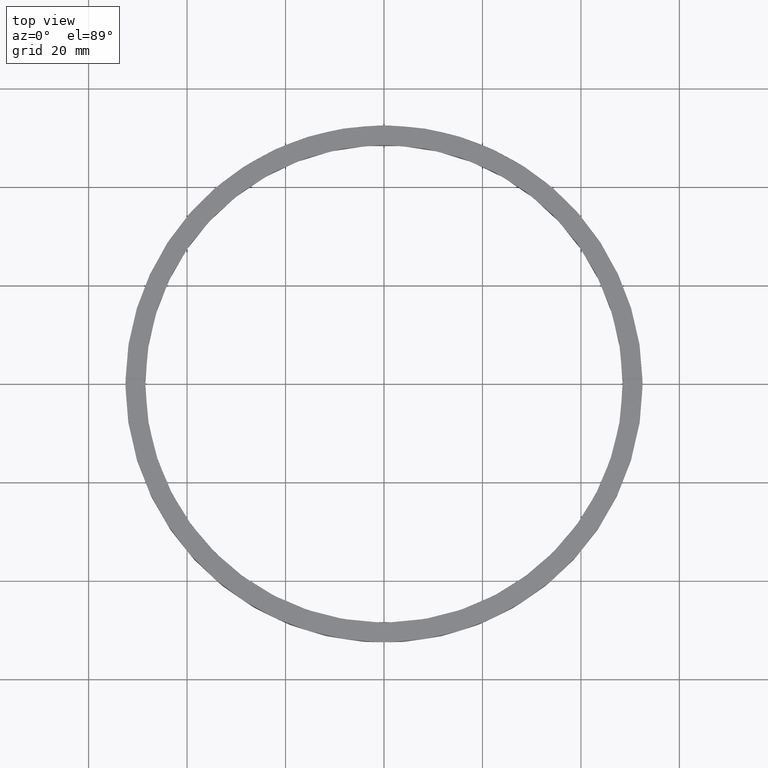
[diagram: clean part render]
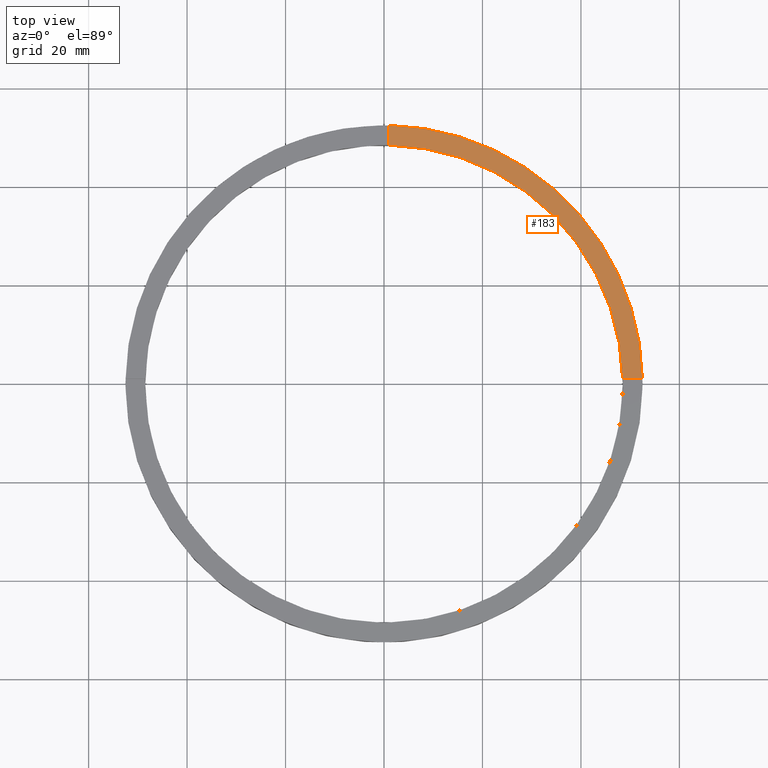
[diagram: same view with one face highlighted and labeled with its STEP entity id]
A machine part, top view. The second image highlights one B-rep face of the part: STEP entity #183.
In plain terms, the highlighted planar face has unit normal (0, 0, 1).
Its self-contained STEP definition (entity closure, byte-faithful):
#34 = DIRECTION ( 'NONE',  ( 1.000000000000000000, 0.000000000000000000, 0.000000000000000000 ) ) ;
#36 = EDGE_CURVE ( 'NONE', #99, #107, #675, .T. ) ;
#37 = CARTESIAN_POINT ( 'NONE',  ( 48.48968962573384545, 0.9999999999998450129, 5.000000000000000000 ) ) ;
#51 = PLANE ( 'NONE',  #740 ) ;
#67 = AXIS2_PLACEMENT_3D ( 'NONE', #328, #229, #34 ) ;
#68 = DIRECTION ( 'NONE',  ( 1.000000000000000000, 0.000000000000000000, -0.000000000000000000 ) ) ;
#69 = CARTESIAN_POINT ( 'NONE',  ( 0.000000000000000000, 0.000000000000000000, 5.000000000000000000 ) ) ;
#97 = ORIENTED_EDGE ( 'NONE', *, *, #437, .F. ) ;
#99 = VERTEX_POINT ( 'NONE', #573 ) ;
#105 = ORIENTED_EDGE ( 'NONE', *, *, #732, .F. ) ;
#107 = VERTEX_POINT ( 'NONE', #687 ) ;
#137 = AXIS2_PLACEMENT_3D ( 'NONE', #69, #768, #185 ) ;
#150 = VECTOR ( 'NONE', #212, 1000.000000000000000 ) ;
#165 = CIRCLE ( 'NONE', #67, 48.50000000000000000 ) ;
#169 = LINE ( 'NONE', #564, #150 ) ;
#183 = ADVANCED_FACE ( 'NONE', ( #743 ), #51, .T. ) ;
#185 = DIRECTION ( 'NONE',  ( 1.000000000000000000, 0.000000000000000000, 0.000000000000000000 ) ) ;
#186 = CARTESIAN_POINT ( 'NONE',  ( 0.9999999999999729106, 48.48968962573384545, 5.000000000000000000 ) ) ;
#187 = CARTESIAN_POINT ( 'NONE',  ( 0.9999999999999729106, 42.49999999999999289, 5.000000000000000000 ) ) ;
#212 = DIRECTION ( 'NONE',  ( -1.000000000000000000, -6.505213034913025371E-17, -0.000000000000000000 ) ) ;
#229 = DIRECTION ( 'NONE',  ( 0.000000000000000000, 0.000000000000000000, 1.000000000000000000 ) ) ;
#247 = CARTESIAN_POINT ( 'NONE',  ( 0.000000000000000000, 0.000000000000000000, 5.000000000000000000 ) ) ;
#270 = DIRECTION ( 'NONE',  ( 0.000000000000000000, 0.000000000000000000, 1.000000000000000000 ) ) ;
#311 = EDGE_CURVE ( 'NONE', #334, #640, #165, .T. ) ;
#328 = CARTESIAN_POINT ( 'NONE',  ( 0.000000000000000000, 0.000000000000000000, 5.000000000000000000 ) ) ;
#334 = VERTEX_POINT ( 'NONE', #37 ) ;
#367 = EDGE_LOOP ( 'NONE', ( #105, #714, #97, #462 ) ) ;
#437 = EDGE_CURVE ( 'NONE', #99, #334, #169, .T. ) ;
#450 = LINE ( 'NONE', #187, #469 ) ;
#462 = ORIENTED_EDGE ( 'NONE', *, *, #36, .T. ) ;
#469 = VECTOR ( 'NONE', #476, 1000.000000000000000 ) ;
#476 = DIRECTION ( 'NONE',  ( 0.000000000000000000, 1.000000000000000000, 0.000000000000000000 ) ) ;
#564 = CARTESIAN_POINT ( 'NONE',  ( 42.49999999999998579, 0.9999999999998445688, 5.000000000000000000 ) ) ;
#573 = CARTESIAN_POINT ( 'NONE',  ( 52.49047532648184955, 0.9999999999998452349, 5.000000000000000000 ) ) ;
#640 = VERTEX_POINT ( 'NONE', #186 ) ;
#675 = CIRCLE ( 'NONE', #137, 52.50000000000000000 ) ;
#687 = CARTESIAN_POINT ( 'NONE',  ( 0.9999999999999729106, 52.49047532648184244, 5.000000000000000000 ) ) ;
#714 = ORIENTED_EDGE ( 'NONE', *, *, #311, .F. ) ;
#732 = EDGE_CURVE ( 'NONE', #640, #107, #450, .T. ) ;
#740 = AXIS2_PLACEMENT_3D ( 'NONE', #247, #270, #68 ) ;
#743 = FACE_OUTER_BOUND ( 'NONE', #367, .T. ) ;
#768 = DIRECTION ( 'NONE',  ( 0.000000000000000000, 0.000000000000000000, 1.000000000000000000 ) ) ;